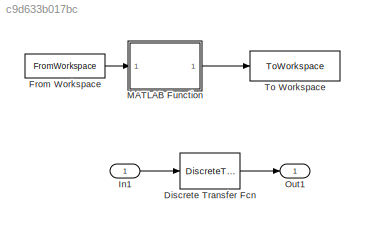
MODEL slx_c9d633b017bc
KIND model
CONFIG AbsTol = auto
CONFIG EnableMultiTasking = off
CONFIG FixedStep = auto
CONFIG MaxStep = auto
CONFIG MinStep = auto
CONFIG RelTol = 1e-3
CONFIG SampleTimeConstraint = Unconstrained
CONFIG SolverName = FixedStepAuto
CONFIG StartTime = 0.0
CONFIG StopTime = 10.0
BLOCK [DiscreteTransferFcn] Discrete Transfer Fcn
  InputPortMap = u0
  InputProcessing = Columns as channels (frame based)
BLOCK [FromWorkspace] From Workspace
  Commented = on
  VariableName = input_numeric_array
BLOCK [Inport] In1
  OutDataTypeStr = double
  SampleTime = 0.1
  SignalType = real
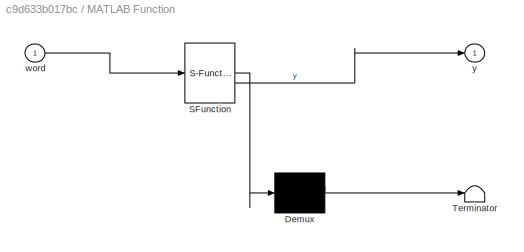
BLOCK [SubSystem] MATLAB Function
  Commented = on
  ErrorFcn = Stateflow.Translate.translate
  LibrarySourceBlock = simulink/User-Defined\nFunctions/MATLAB Function
  PermitHierarchicalResolution = ExplicitOnly
  SFBlockType = MATLAB Function
  TreatAsAtomicUnit = on
BLOCK [Demux] MATLAB Function/ Demux 
  Outputs = 1
BLOCK [S-Function] MATLAB Function/ SFunction 
  EnableBusSupport = on
  FunctionName = sf_sfun
  PortCounts = [1 2]
  SFcnIsStateOwnerBlock = off
  SFunctionDeploymentMode = off
  Tag = Stateflow S-Function 2
BLOCK [Terminator] MATLAB Function/ Terminator 
BLOCK [Inport] MATLAB Function/word
BLOCK [Outport] MATLAB Function/y
BLOCK [Outport] Out1
BLOCK [ToWorkspace] To Workspace
  Commented = on
  FixptAsFi = on
  MaxDataPoints = inf
  SampleTime = -1
  SaveFormat = Timeseries
  VariableName = output_char_array
LINE Discrete Transfer Fcn:1 -> Out1:1
LINE From Workspace:1 -> MATLAB Function:1
LINE In1:1 -> Discrete Transfer Fcn:1
LINE MATLAB Function:1 -> To Workspace:1
CHART MATLAB Function states=1 transitions=1
  STATE_LABEL 'eML_blk_kernel()'
  STATE_LABEL "SCRIPT:\nfunction y = mayhem(word)\n    word = char(word);\n    \n    % Check if the input is a char array\n    assert(ischar(word), 'Input must be a char array or string.');\n \n    if length(word) >= 1 && word(1) == 'b'\n        if length(word) >= 2 && word(2) == 'u'\n            if length(word) >= 3 && word(3) == 'g'\n                fprintf('Bug here!\\n');\n                len = 1e7;\n                for ...<+207ch>"
CHART  states=0 transitions=0
